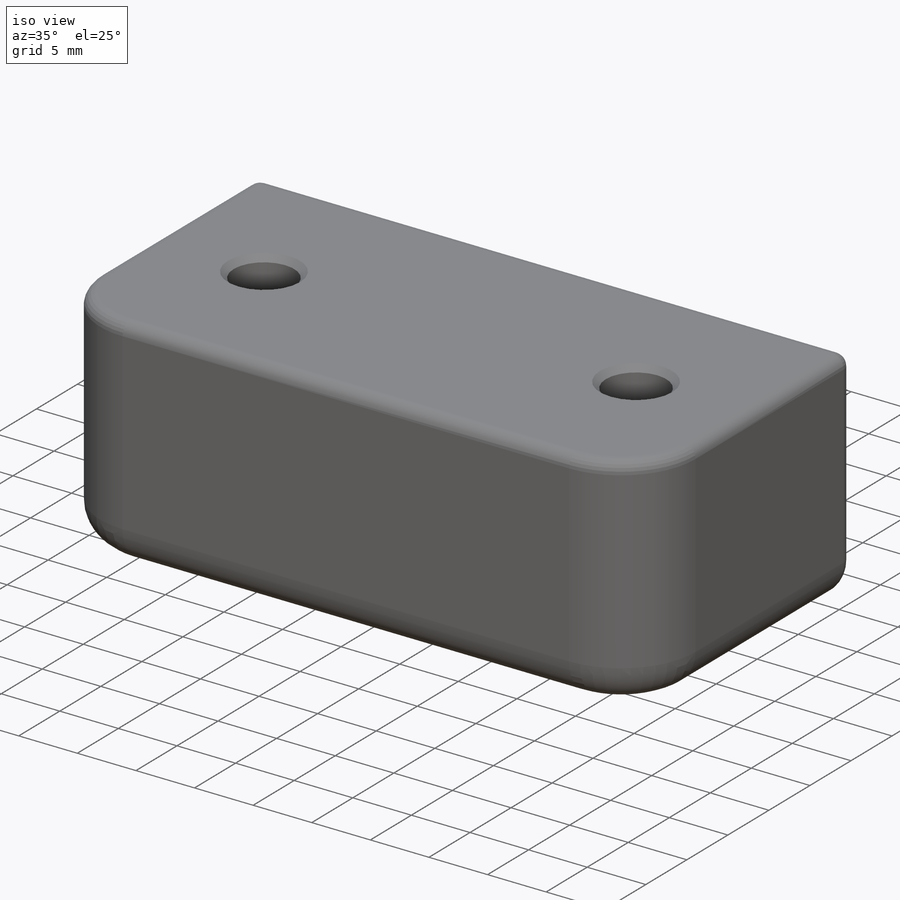
[diagram: iso view]
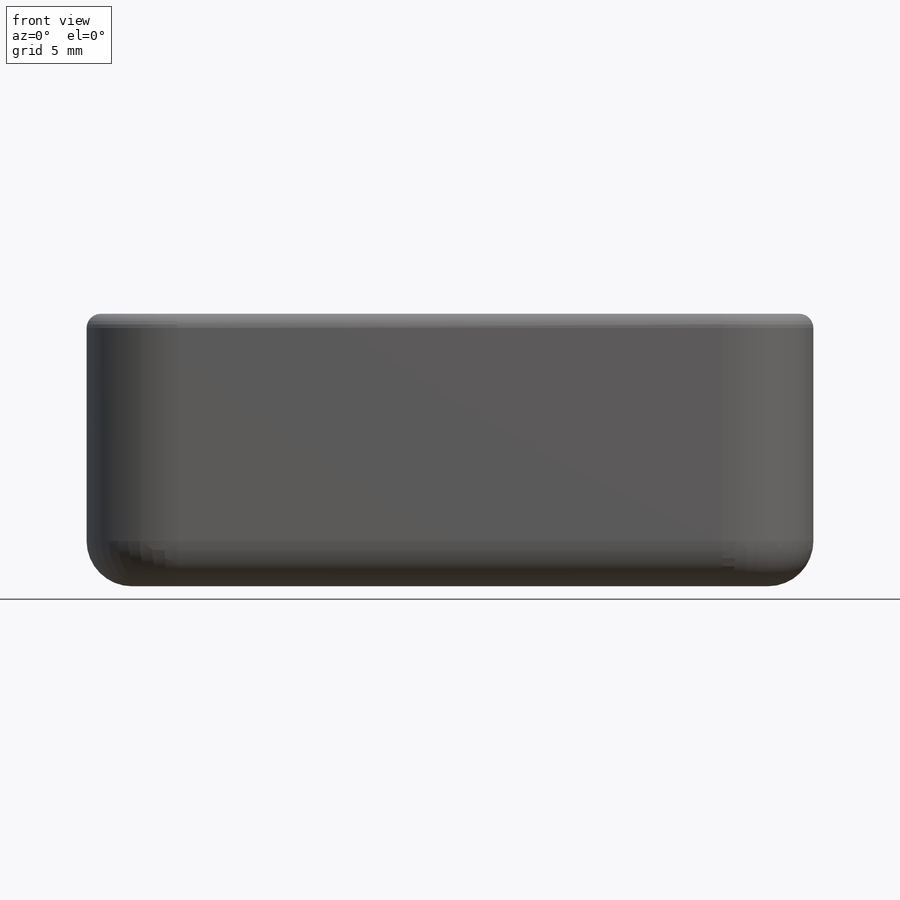
[diagram: front view]
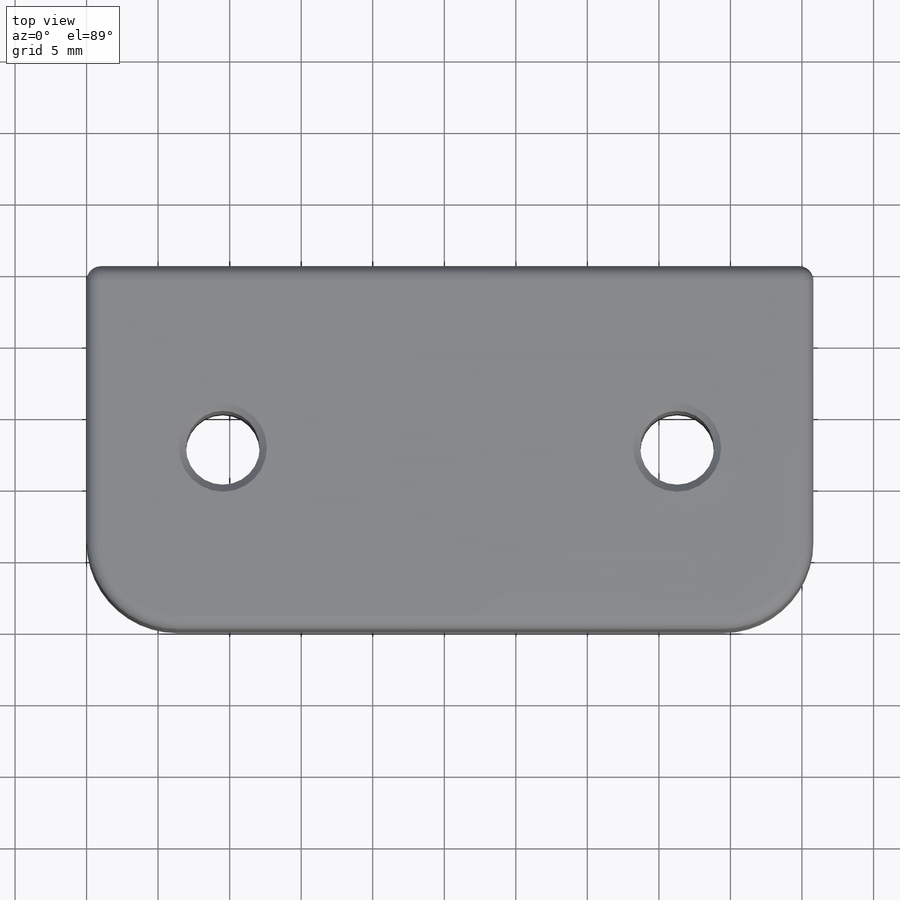
[diagram: top view]
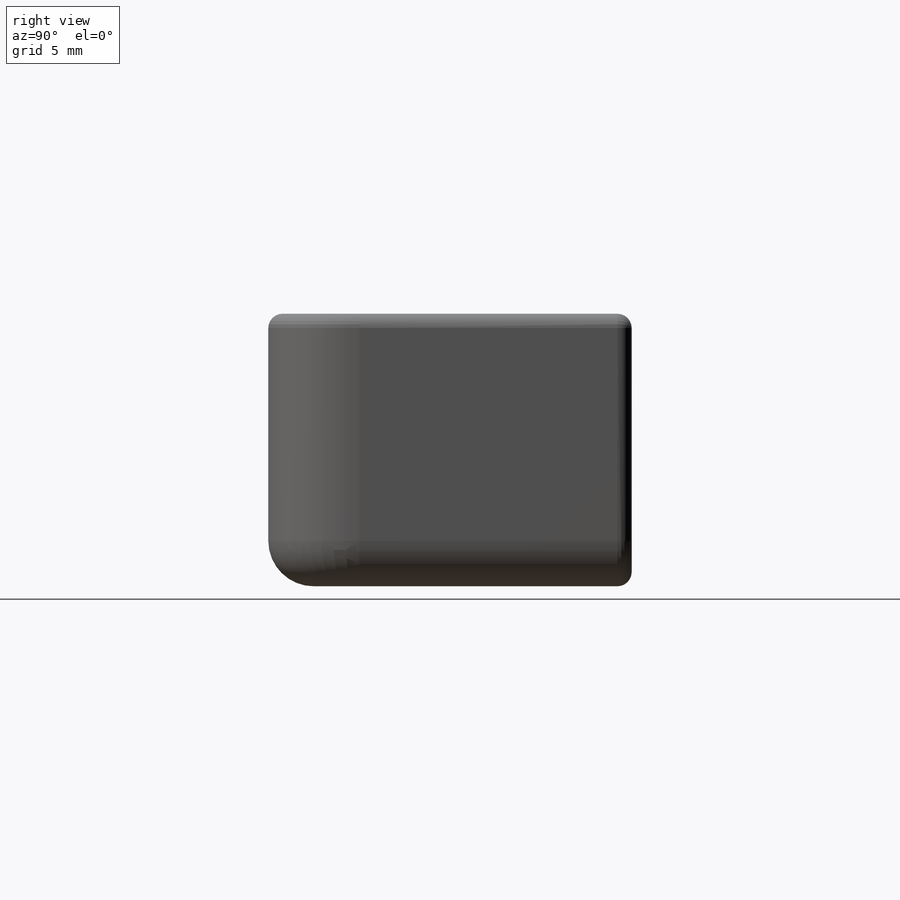
[diagram: right view]
SOLIDWORKS PART (.sldprt)
format: sldprt  version: not decoded by parser v0  size: 238,080 bytes
history: native  units: mm
features: sketch x3, cut_extrude x2, fillet x2, material x1, extrude x1, chamfer x1 (+11 scaffold rows collapsed)
feature tree (21):
  scaffold x11  (default folders/planes/origin — collapsed)
  material  "Material <not specified>"
  sketch  "Sketch1"  dims[D3=6.35mm D1=25.4mm D2=50.8mm]
  extrude  "Boss-Extrude1"  Depth=19.05mm
  sketch  "Sketch2"  dims[D1=12.7mm D2=9.525mm]
  cut_extrude  "Cut-Extrude1"  [1 undecoded]
  sketch  "Sketch3"  dims[c1.D2=~5.812141mm c1.D1=9.525mm c2.D2=9.525mm]
  cut_extrude  "Cut-Extrude2"  Depth=6.604mm
  chamfer  "Chamfer1"  Distance=0.5mm Angle=45deg
  fillet  "Fillet1"  Radius=3.175mm
  fillet  "Fillet2"  Radius=1mm
decode coverage: 8 of 9 modeling features carry decoded parameters
note: ~ marks probable driven/reference dimensions
note: 1 parameter value undecoded
note: suppression state not decoded; provenance and decode notes live in map.json
